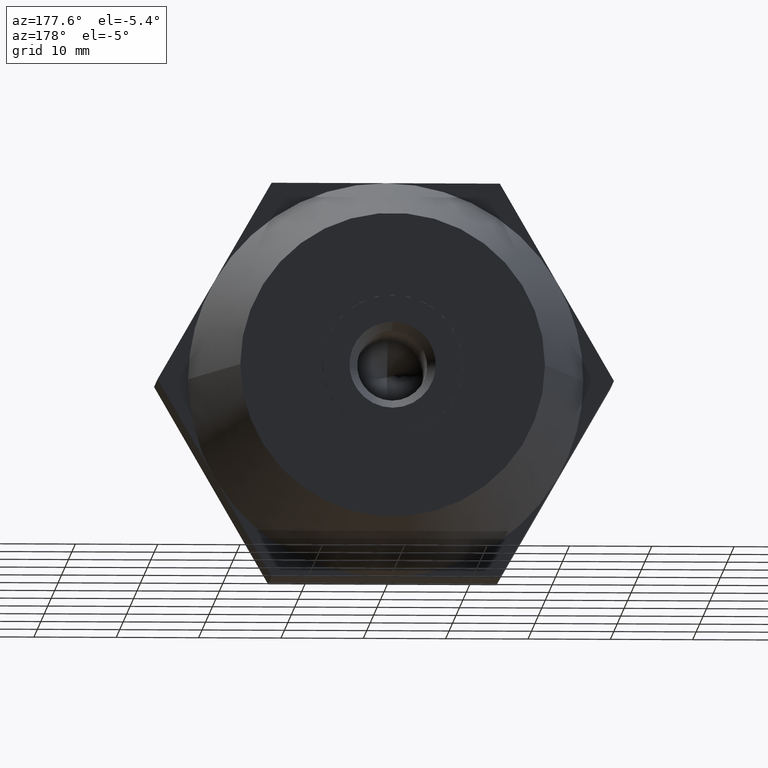
[diagram: clean part render]
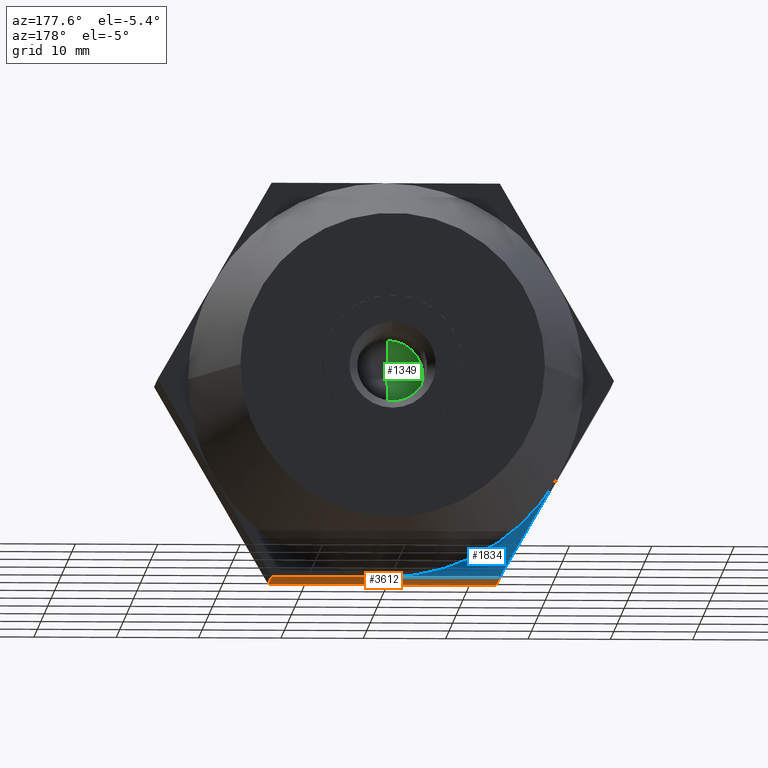
[diagram: same view with three faces highlighted in distinct colors, each labeled with its STEP entity id]
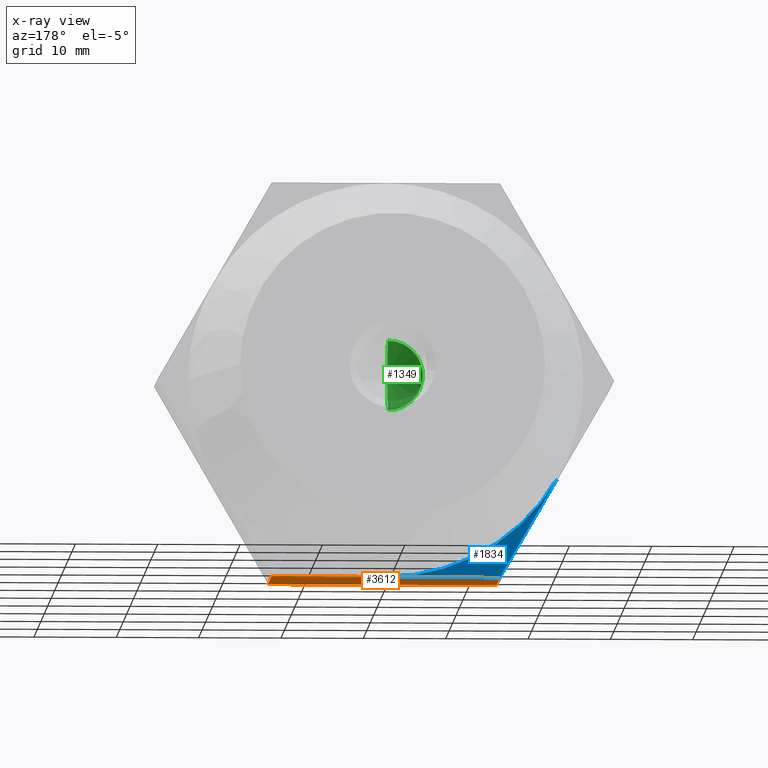
[diagram: x-ray of the same camera — body ghosted, the three highlighted faces saturated]
A machine part, auxiliary view with three faces highlighted in distinct colors.
The next image is the same camera in x-ray (body ghosted, the three faces saturated) — at least one of them is partly hidden behind the body in this view.
Their STEP definitions:

[orange] entity #3612 — the highlighted planar face has unit normal (-0, 0, 1).
#3 = CARTESIAN_POINT ( 'NONE',  ( 13.85640646055101900, -5.000000000000000000, -24.00000000000000000 ) ) ;
#17 = EDGE_CURVE ( 'NONE', #2390, #2855, #2312, .T. ) ;
#103 = DIRECTION ( 'NONE',  ( -1.000000000000000000, 0.0000000000000000000, -1.251928832280965700E-016 ) ) ;
#166 = CARTESIAN_POINT ( 'NONE',  ( 13.85640646055101900, 5.000000000000000000, -24.00000000000000000 ) ) ;
#187 = DIRECTION ( 'NONE',  ( -1.000000000000000000, 0.0000000000000000000, -1.251928832280965700E-016 ) ) ;
#226 = ORIENTED_EDGE ( 'NONE', *, *, #17, .F. ) ;
#270 = ORIENTED_EDGE ( 'NONE', *, *, #3663, .T. ) ;
#321 = FACE_OUTER_BOUND ( 'NONE', #3812, .T. ) ;
#331 = DIRECTION ( 'NONE',  ( -1.251928832280965700E-016, 0.0000000000000000000, 1.000000000000000000 ) ) ;
#402 = EDGE_CURVE ( 'NONE', #2054, #2841, #2113, .T. ) ;
#449 = DIRECTION ( 'NONE',  ( 0.0000000000000000000, -1.000000000000000000, 0.0000000000000000000 ) ) ;
#609 = AXIS2_PLACEMENT_3D ( 'NONE', #1844, #331, #2525 ) ;
#640 = LINE ( 'NONE', #3764, #2590 ) ;
#974 = VECTOR ( 'NONE', #1287, 1000.000000000000000 ) ;
#1087 = EDGE_CURVE ( 'NONE', #2716, #2390, #2494, .T. ) ;
#1190 = DIRECTION ( 'NONE',  ( -1.000000000000000000, 0.0000000000000000000, -1.251928832280965700E-016 ) ) ;
#1204 = LINE ( 'NONE', #3871, #2790 ) ;
#1287 = DIRECTION ( 'NONE',  ( -1.000000000000000000, 0.0000000000000000000, -1.251928832280965700E-016 ) ) ;
#1503 = CARTESIAN_POINT ( 'NONE',  ( 13.85640646055101900, 5.000000000000000000, -24.00000000000000000 ) ) ;
#1567 = CARTESIAN_POINT ( 'NONE',  ( 1.371913175312200000E-014, 5.000000000000000000, -24.00000000000000000 ) ) ;
#1694 = EDGE_CURVE ( 'NONE', #2716, #3132, #640, .T. ) ;
#1792 = LINE ( 'NONE', #2805, #974 ) ;
#1844 = CARTESIAN_POINT ( 'NONE',  ( 13.85640646055101900, 5.000000000000000000, -24.00000000000000000 ) ) ;
#1883 = CARTESIAN_POINT ( 'NONE',  ( 13.85640646055101900, -5.000000000000000000, -24.00000000000000000 ) ) ;
#2054 = VERTEX_POINT ( 'NONE', #2274 ) ;
#2113 = LINE ( 'NONE', #3, #3125 ) ;
#2222 = DIRECTION ( 'NONE',  ( 0.0000000000000000000, -1.000000000000000000, 0.0000000000000000000 ) ) ;
#2274 = CARTESIAN_POINT ( 'NONE',  ( 1.096437061717544000E-014, -5.000000000000000000, -24.00000000000000000 ) ) ;
#2312 = LINE ( 'NONE', #1503, #3270 ) ;
#2335 = CARTESIAN_POINT ( 'NONE',  ( -13.85640646055101900, 5.000000000000000000, -24.00000000000000000 ) ) ;
#2343 = ORIENTED_EDGE ( 'NONE', *, *, #402, .T. ) ;
#2390 = VERTEX_POINT ( 'NONE', #1567 ) ;
#2394 = ORIENTED_EDGE ( 'NONE', *, *, #1087, .F. ) ;
#2494 = LINE ( 'NONE', #166, #3607 ) ;
#2525 = DIRECTION ( 'NONE',  ( 1.000000000000000000, 0.0000000000000000000, 1.251928832280965700E-016 ) ) ;
#2590 = VECTOR ( 'NONE', #2222, 1000.000000000000000 ) ;
#2617 = CARTESIAN_POINT ( 'NONE',  ( -13.85640646055101900, -5.000000000000000000, -24.00000000000000000 ) ) ;
#2666 = ORIENTED_EDGE ( 'NONE', *, *, #1694, .T. ) ;
#2714 = EDGE_CURVE ( 'NONE', #2855, #2841, #1204, .T. ) ;
#2716 = VERTEX_POINT ( 'NONE', #3183 ) ;
#2790 = VECTOR ( 'NONE', #449, 1000.000000000000000 ) ;
#2805 = CARTESIAN_POINT ( 'NONE',  ( 13.85640646055101900, -5.000000000000000000, -24.00000000000000000 ) ) ;
#2841 = VERTEX_POINT ( 'NONE', #2617 ) ;
#2855 = VERTEX_POINT ( 'NONE', #2335 ) ;
#3125 = VECTOR ( 'NONE', #103, 1000.000000000000000 ) ;
#3132 = VERTEX_POINT ( 'NONE', #1883 ) ;
#3183 = CARTESIAN_POINT ( 'NONE',  ( 13.85640646055101900, 5.000000000000000000, -24.00000000000000000 ) ) ;
#3270 = VECTOR ( 'NONE', #1190, 1000.000000000000000 ) ;
#3382 = PLANE ( 'NONE',  #609 ) ;
#3607 = VECTOR ( 'NONE', #187, 1000.000000000000000 ) ;
#3612 = ADVANCED_FACE ( 'NONE', ( #321 ), #3382, .F. ) ;
#3662 = ORIENTED_EDGE ( 'NONE', *, *, #2714, .F. ) ;
#3663 = EDGE_CURVE ( 'NONE', #3132, #2054, #1792, .T. ) ;
#3764 = CARTESIAN_POINT ( 'NONE',  ( 13.85640646055101900, 5.000000000000000000, -24.00000000000000000 ) ) ;
#3812 = EDGE_LOOP ( 'NONE', ( #270, #2343, #3662, #226, #2394, #2666 ) ) ;
#3871 = CARTESIAN_POINT ( 'NONE',  ( -13.85640646055101900, 5.000000000000000000, -24.00000000000000000 ) ) ;

[blue] entity #1834 — the highlighted planar face has unit normal (0, 1, 0).
#17 = EDGE_CURVE ( 'NONE', #2390, #2855, #2312, .T. ) ;
#261 = CARTESIAN_POINT ( 'NONE',  ( -20.78460969082655300, 5.000000000000000000, -12.00000000000000000 ) ) ;
#317 = CIRCLE ( 'NONE', #376, 24.00000000000000000 ) ;
#376 = AXIS2_PLACEMENT_3D ( 'NONE', #3161, #1321, #708 ) ;
#501 = LINE ( 'NONE', #2032, #1399 ) ;
#657 = CARTESIAN_POINT ( 'NONE',  ( 0.0000000000000000000, 5.000000000000000000, 0.0000000000000000000 ) ) ;
#708 = DIRECTION ( 'NONE',  ( -1.000000000000000000, 1.084202172485504400E-016, 0.0000000000000000000 ) ) ;
#860 = ORIENTED_EDGE ( 'NONE', *, *, #2201, .T. ) ;
#1027 = ORIENTED_EDGE ( 'NONE', *, *, #17, .T. ) ;
#1190 = DIRECTION ( 'NONE',  ( -1.000000000000000000, 0.0000000000000000000, -1.251928832280965700E-016 ) ) ;
#1246 = FACE_OUTER_BOUND ( 'NONE', #1562, .T. ) ;
#1279 = DIRECTION ( 'NONE',  ( 0.0000000000000000000, 0.0000000000000000000, 1.000000000000000000 ) ) ;
#1321 = DIRECTION ( 'NONE',  ( 9.182537119821829500E-017, 1.000000000000000000, 0.0000000000000000000 ) ) ;
#1399 = VECTOR ( 'NONE', #2655, 1000.000000000000000 ) ;
#1434 = VERTEX_POINT ( 'NONE', #261 ) ;
#1503 = CARTESIAN_POINT ( 'NONE',  ( 13.85640646055101900, 5.000000000000000000, -24.00000000000000000 ) ) ;
#1562 = EDGE_LOOP ( 'NONE', ( #3930, #1027, #860 ) ) ;
#1567 = CARTESIAN_POINT ( 'NONE',  ( 1.371913175312200000E-014, 5.000000000000000000, -24.00000000000000000 ) ) ;
#1834 = ADVANCED_FACE ( 'NONE', ( #1246 ), #1909, .T. ) ;
#1909 = PLANE ( 'NONE',  #1973 ) ;
#1973 = AXIS2_PLACEMENT_3D ( 'NONE', #657, #3117, #1279 ) ;
#2000 = EDGE_CURVE ( 'NONE', #2390, #1434, #317, .T. ) ;
#2032 = CARTESIAN_POINT ( 'NONE',  ( -13.85640646055101900, 5.000000000000000000, -24.00000000000000000 ) ) ;
#2201 = EDGE_CURVE ( 'NONE', #2855, #1434, #501, .T. ) ;
#2312 = LINE ( 'NONE', #1503, #3270 ) ;
#2335 = CARTESIAN_POINT ( 'NONE',  ( -13.85640646055101900, 5.000000000000000000, -24.00000000000000000 ) ) ;
#2390 = VERTEX_POINT ( 'NONE', #1567 ) ;
#2655 = DIRECTION ( 'NONE',  ( -0.4999999999999998900, 0.0000000000000000000, 0.8660254037844387100 ) ) ;
#2855 = VERTEX_POINT ( 'NONE', #2335 ) ;
#3117 = DIRECTION ( 'NONE',  ( 0.0000000000000000000, 1.000000000000000000, 0.0000000000000000000 ) ) ;
#3161 = CARTESIAN_POINT ( 'NONE',  ( 8.877995131683309600E-015, 5.000000000000000000, 0.0000000000000000000 ) ) ;
#3270 = VECTOR ( 'NONE', #1190, 1000.000000000000000 ) ;
#3930 = ORIENTED_EDGE ( 'NONE', *, *, #2000, .F. ) ;

[green] entity #1349 — the highlighted conical surface has half-angle 59 deg.
#73 = EDGE_LOOP ( 'NONE', ( #578, #115, #1649 ) ) ;
#115 = ORIENTED_EDGE ( 'NONE', *, *, #210, .T. ) ;
#202 = EDGE_CURVE ( 'NONE', #3308, #347, #1919, .T. ) ;
#210 = EDGE_CURVE ( 'NONE', #3308, #3950, #2936, .T. ) ;
#347 = VERTEX_POINT ( 'NONE', #3090 ) ;
#378 = DIRECTION ( 'NONE',  ( 0.0000000000000000000, 0.0000000000000000000, 1.000000000000000000 ) ) ;
#527 = DIRECTION ( 'NONE',  ( 0.0000000000000000000, 1.000000000000000000, 0.0000000000000000000 ) ) ;
#555 = DIRECTION ( 'NONE',  ( 1.049727191138618200E-016, 0.5150380749100549300, -0.8571673007021118900 ) ) ;
#578 = ORIENTED_EDGE ( 'NONE', *, *, #202, .F. ) ;
#684 = VECTOR ( 'NONE', #2364, 999.9999999999998900 ) ;
#766 = DIRECTION ( 'NONE',  ( 0.0000000000000000000, 0.0000000000000000000, 1.000000000000000000 ) ) ;
#840 = CARTESIAN_POINT ( 'NONE',  ( 5.204748896376250700E-016, 3.050000000000000300, -4.250000000000000000 ) ) ;
#979 = CIRCLE ( 'NONE', #3478, 4.250000000000000000 ) ;
#1114 = VECTOR ( 'NONE', #555, 999.9999999999998900 ) ;
#1349 = ADVANCED_FACE ( 'NONE', ( #3706 ), #2538, .F. ) ;
#1649 = ORIENTED_EDGE ( 'NONE', *, *, #3284, .T. ) ;
#1919 = LINE ( 'NONE', #2998, #684 ) ;
#2364 = DIRECTION ( 'NONE',  ( 0.0000000000000000000, 0.5150380749100549300, 0.8571673007021118900 ) ) ;
#2538 = CONICAL_SURFACE ( 'NONE', #2853, 4.250000000000000000, 1.029744258676653600 ) ;
#2618 = CARTESIAN_POINT ( 'NONE',  ( -4.042230298373044700E-015, 0.4963423691328700000, 0.0000000000000000000 ) ) ;
#2853 = AXIS2_PLACEMENT_3D ( 'NONE', #2942, #527, #766 ) ;
#2936 = LINE ( 'NONE', #840, #1114 ) ;
#2942 = CARTESIAN_POINT ( 'NONE',  ( 0.0000000000000000000, 3.050000000000000300, 0.0000000000000000000 ) ) ;
#2998 = CARTESIAN_POINT ( 'NONE',  ( 0.0000000000000000000, 3.050000000000000300, 4.250000000000000000 ) ) ;
#3005 = CARTESIAN_POINT ( 'NONE',  ( 0.0000000000000000000, 3.050000000000000300, 0.0000000000000000000 ) ) ;
#3090 = CARTESIAN_POINT ( 'NONE',  ( 0.0000000000000000000, 3.050000000000000300, 4.250000000000000000 ) ) ;
#3284 = EDGE_CURVE ( 'NONE', #3950, #347, #979, .T. ) ;
#3308 = VERTEX_POINT ( 'NONE', #2618 ) ;
#3424 = DIRECTION ( 'NONE',  ( 0.0000000000000000000, 1.000000000000000000, 0.0000000000000000000 ) ) ;
#3478 = AXIS2_PLACEMENT_3D ( 'NONE', #3005, #3424, #378 ) ;
#3589 = CARTESIAN_POINT ( 'NONE',  ( 5.204748896376250700E-016, 3.050000000000000300, -4.250000000000000000 ) ) ;
#3706 = FACE_OUTER_BOUND ( 'NONE', #73, .T. ) ;
#3950 = VERTEX_POINT ( 'NONE', #3589 ) ;